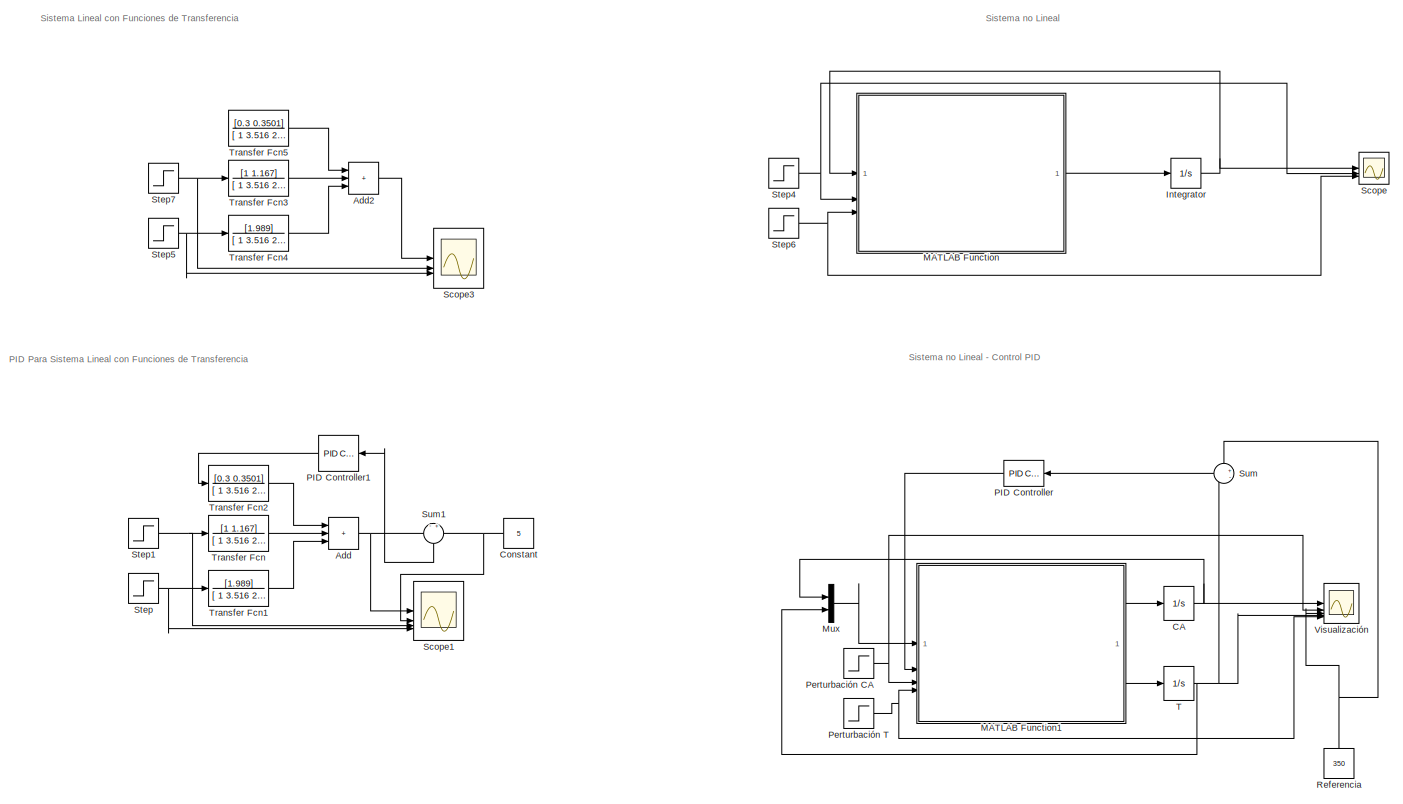
[diagram: root canvas - part 1/2, right side, full height]
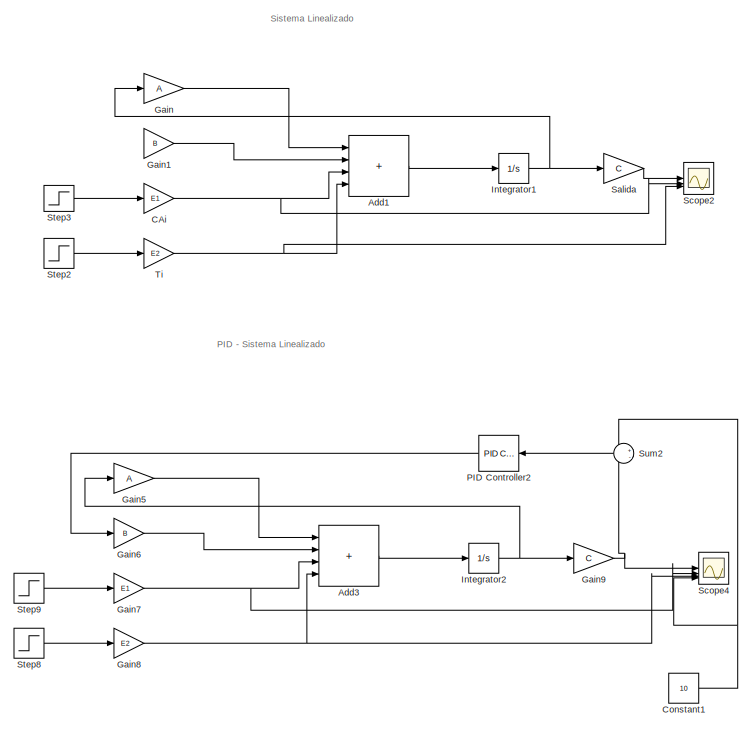
[diagram: root canvas - part 2/2, left side, full height]
MODEL slx_014131b4ae39
KIND model
CONFIG AbsTol = auto
CONFIG EnableMultiTasking = off
CONFIG FixedStep = 1e-5
CONFIG MaxStep = auto
CONFIG MinStep = auto
CONFIG RelTol = auto
CONFIG SampleTimeConstraint = Unconstrained
CONFIG SolverName = VariableStepAuto
CONFIG StartTime = 0.0
CONFIG StopTime = 300
BLOCK [Sum] Add
  Commented = on
  IconShape = rectangular
  Inputs = +++
BLOCK [Sum] Add1
  Commented = on
  IconShape = rectangular
  Inputs = ++++
BLOCK [Sum] Add2
  Commented = on
  IconShape = rectangular
  Inputs = +++
BLOCK [Sum] Add3
  Commented = on
  IconShape = rectangular
  Inputs = ++++
BLOCK [Integrator] CA
  InitialCondition = 8
BLOCK [Gain] CAi
  Commented = on
  Gain = E1
BLOCK [Constant] Constant
  Commented = on
  NameLocation = top
  Value = 5
BLOCK [Constant] Constant1
  Commented = on
  Value = 10
BLOCK [Gain] Gain
  Commented = on
  Gain = A
  Multiplication = Matrix(K*u)
BLOCK [Gain] Gain1
  Commented = on
  Gain = B
BLOCK [Gain] Gain5
  Commented = on
  Gain = A
  Multiplication = Matrix(K*u)
BLOCK [Gain] Gain6
  Commented = on
  Gain = B
BLOCK [Gain] Gain7
  Commented = on
  Gain = E1
BLOCK [Gain] Gain8
  Commented = on
  Gain = E2
BLOCK [Gain] Gain9
  Commented = on
  Gain = C
  Multiplication = Matrix(K*u)
BLOCK [Integrator] Integrator
  Commented = on
  InitialCondition = [8;300]
BLOCK [Integrator] Integrator1
  Commented = on
BLOCK [Integrator] Integrator2
  Commented = on
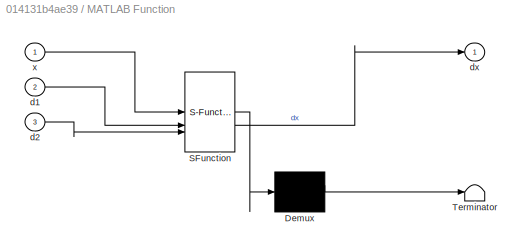
BLOCK [SubSystem] MATLAB Function
  Commented = on
  ErrorFcn = Stateflow.Translate.translate
  PermitHierarchicalResolution = ExplicitOnly
  SFBlockType = MATLAB Function
  TreatAsAtomicUnit = on
BLOCK [Demux] MATLAB Function/ Demux 
  Outputs = 1
BLOCK [S-Function] MATLAB Function/ SFunction 
  EnableBusSupport = on
  FunctionName = sf_sfun
  Parameters = A,CAi_ss,E,F,H,R,Tc_ss,Ti_ss,UA,V,pCp
  PortCounts = [3 2]
  SFcnIsStateOwnerBlock = off
  SFunctionDeploymentMode = off
  Tag = Stateflow S-Function 2
BLOCK [Terminator] MATLAB Function/ Terminator 
BLOCK [Inport] MATLAB Function/d1
  Port = 2
BLOCK [Inport] MATLAB Function/d2
  Port = 3
BLOCK [Outport] MATLAB Function/dx
BLOCK [Inport] MATLAB Function/x
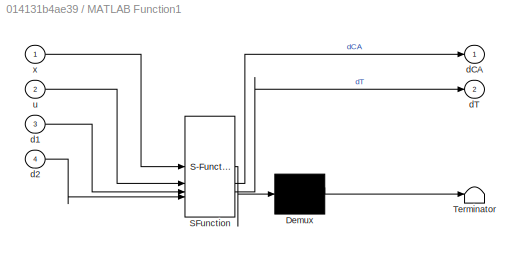
BLOCK [SubSystem] MATLAB Function1
  ErrorFcn = Stateflow.Translate.translate
  PermitHierarchicalResolution = ExplicitOnly
  SFBlockType = MATLAB Function
  TreatAsAtomicUnit = on
BLOCK [Demux] MATLAB Function1/ Demux 
  Outputs = 1
BLOCK [S-Function] MATLAB Function1/ SFunction 
  EnableBusSupport = on
  FunctionName = sf_sfun
  Parameters = A,CAi_ss,E,F,H,R,Ti_ss,UA,V,pCp
  PortCounts = [4 3]
  SFcnIsStateOwnerBlock = off
  SFunctionDeploymentMode = off
  Tag = Stateflow S-Function 1
BLOCK [Terminator] MATLAB Function1/ Terminator 
BLOCK [Inport] MATLAB Function1/d1
  Port = 3
BLOCK [Inport] MATLAB Function1/d2
  Port = 4
BLOCK [Outport] MATLAB Function1/dCA
BLOCK [Outport] MATLAB Function1/dT
  Port = 2
BLOCK [Inport] MATLAB Function1/u
  Port = 2
BLOCK [Inport] MATLAB Function1/x
BLOCK [Mux] Mux
  DisplayOption = bar
  Inputs = 2
BLOCK [Reference] PID Controller  REF=slpidlib/PID Controller
  LibrarySourceBlock = simulink/Continuous/PID Controller
  NameLocation = top
  SourceBlock = slpidlib/PID Controller
  SourceType = PID 1dof
BLOCK [Reference] PID Controller1  REF=slpidlib/PID Controller
  Commented = on
  LibrarySourceBlock = simulink/Continuous/PID Controller
  NameLocation = top
  SourceBlock = slpidlib/PID Controller
  SourceType = PID 1dof
BLOCK [Reference] PID Controller2  REF=slpidlib/PID Controller
  Commented = on
  LibrarySourceBlock = simulink/Continuous/PID Controller
  NameLocation = top
  SourceBlock = slpidlib/PID Controller
  SourceType = PID 1dof
BLOCK [Step] Perturbación CA
  After = 0
  SampleTime = 0
  Time = 0
BLOCK [Step] Perturbación T
  After = 10
  SampleTime = 0
  Time = 100
BLOCK [Constant] Referencia
  NameLocation = right
  Value = 350
BLOCK [Gain] Salida
  Commented = on
  Gain = C
  Multiplication = Matrix(K*u)
BLOCK [Scope] Scope
  Commented = on
  Floating = off
  NumInputPorts = 3
  ScopeSpecificationString = Simulink.scopes.TimeScopeBlockCfg('CurrentConfiguration', extmgr.ConfigurationSet(extmgr.Configuration('Core','General UI',true),extmgr.Configuration('Core','Source UI',true),extmgr.Configuration('Sources','WiredSimulink',true),extmgr.Configuration('Visuals','Time Domain',true,'SerializedDisplays',{struct('MinYLimReal','-38.91247','MaxYLimReal','350.21225','YLabelReal','','MinYLimMag','0.00000','M...<+1579ch>
BLOCK [Scope] Scope1
  Commented = on
  Floating = off
  NameLocation = right
  NumInputPorts = 4
  ScopeSpecificationString = Simulink.scopes.TimeScopeBlockCfg('CurrentConfiguration', extmgr.ConfigurationSet(extmgr.Configuration('Core','General UI',true),extmgr.Configuration('Core','Source UI',true),extmgr.Configuration('Sources','WiredSimulink',true,'DataLoggingVariableName','ScopeData1'),extmgr.Configuration('Visuals','Time Domain',true,'SerializedDisplays',{struct('MinYLimReal','-0.68023','MaxYLimReal','6.12205','YLab...<+1503ch>
BLOCK [Scope] Scope2
  Commented = on
  Floating = off
  NumInputPorts = 3
  ScopeSpecificationString = Simulink.scopes.TimeScopeBlockCfg('CurrentConfiguration', extmgr.ConfigurationSet(extmgr.Configuration('Core','General UI',true),extmgr.Configuration('Core','Source UI',true),extmgr.Configuration('Sources','WiredSimulink',true,'DataLoggingVariableName','ScopeData2'),extmgr.Configuration('Visuals','Time Domain',true,'SerializedDisplays',{struct('MinYLimReal','-0.6771','MaxYLimReal','6.09392','YLabe...<+1657ch>
BLOCK [Scope] Scope3
  Commented = on
  Floating = off
  NameLocation = right
  NumInputPorts = 3
  ScopeSpecificationString = Simulink.scopes.TimeScopeBlockCfg('CurrentConfiguration', extmgr.ConfigurationSet(extmgr.Configuration('Core','General UI',true),extmgr.Configuration('Core','Source UI',true),extmgr.Configuration('Sources','WiredSimulink',true,'DataLoggingVariableName','ScopeData4'),extmgr.Configuration('Visuals','Time Domain',true,'SerializedDisplays',{struct('MinYLimReal','-0.375','MaxYLimReal','3.375','YLabelRe...<+1482ch>
BLOCK [Scope] Scope4
  Commented = on
  Floating = off
  NumInputPorts = 4
  ScopeSpecificationString = Simulink.scopes.TimeScopeBlockCfg('CurrentConfiguration', extmgr.ConfigurationSet(extmgr.Configuration('Core','General UI',true),extmgr.Configuration('Core','Source UI',true),extmgr.Configuration('Sources','WiredSimulink',true,'DataLoggingVariableName','ScopeData5'),extmgr.Configuration('Visuals','Time Domain',true,'SerializedDisplays',{struct('MinYLimReal','-1.41498','MaxYLimReal','12.73483','YLa...<+1535ch>
BLOCK [Step] Step
  Commented = on
  SampleTime = 0
  Time = 150
BLOCK [Step] Step1
  After = 0
  Commented = on
  SampleTime = 0
  Time = 0
BLOCK [Step] Step2
  After = 5
  Commented = on
  SampleTime = 0
  Time = 50
BLOCK [Step] Step3
  After = 5
  Commented = on
  SampleTime = 0
  Time = 200
BLOCK [Step] Step4
  After = 0
  Commented = on
  SampleTime = 0
  Time = 0
BLOCK [Step] Step5
  After = 3
  Commented = on
  SampleTime = 0
  Time = 100
BLOCK [Step] Step6
  After = 0
  Commented = on
  SampleTime = 0
  Time = 0
BLOCK [Step] Step7
  After = 0
  Commented = on
  SampleTime = 0
  Time = 0
BLOCK [Step] Step8
  After = 4
  Commented = on
  SampleTime = 0
  Time = 250
BLOCK [Step] Step9
  After = 0
  Commented = on
  SampleTime = 0
  Time = 0
BLOCK [Sum] Sum
  Inputs = +-
  NameLocation = top
BLOCK [Sum] Sum1
  Commented = on
  Inputs = -+
  NameLocation = left
BLOCK [Sum] Sum2
  Commented = on
  Inputs = +-
  NameLocation = top
BLOCK [Integrator] T
  InitialCondition = [8;300]
BLOCK [Gain] Ti
  Commented = on
  Gain = E2
BLOCK [TransferFcn] Transfer Fcn
  Commented = on
  Denominator = [ 1  3.516  2.916 ]
  Numerator = [1 1.167]
BLOCK [TransferFcn] Transfer Fcn1
  Commented = on
  Denominator = [ 1  3.516  2.916 ]
  Numerator = [1.989]
BLOCK [TransferFcn] Transfer Fcn2
  Commented = on
  Denominator = [ 1  3.516  2.916 ]
  Numerator = [0.3 0.3501]
BLOCK [TransferFcn] Transfer Fcn3
  Commented = on
  Denominator = [ 1  3.516  2.916 ]
  Numerator = [1 1.167]
BLOCK [TransferFcn] Transfer Fcn4
  Commented = on
  Denominator = [ 1  3.516  2.916 ]
  Numerator = [1.989]
BLOCK [TransferFcn] Transfer Fcn5
  Commented = on
  Denominator = [ 1  3.516  2.916 ]
  Numerator = [0.3 0.3501]
BLOCK [Scope] Visualización
  Floating = off
  NumInputPorts = 5
  ScopeSpecificationString = Simulink.scopes.TimeScopeBlockCfg('CurrentConfiguration', extmgr.ConfigurationSet(extmgr.Configuration('Core','General UI',true),extmgr.Configuration('Core','Source UI',true),extmgr.Configuration('Sources','WiredSimulink',true,'DataLoggingVariableName','ScopeData3'),extmgr.Configuration('Visuals','Time Domain',true,'SerializedDisplays',{struct('MinYLimReal','-50.11198','MaxYLimReal','451.00783','Y...<+1798ch>
ANNOTATION (root): PID - Sistema Linealizado
ANNOTATION (root): PID Para Sistema Lineal con Funciones de Transferencia
ANNOTATION (root): Sistema Linealizado
ANNOTATION (root): Sistema no Lineal - Control PID
ANNOTATION (root): Sistema no Lineal
ANNOTATION (root): Sistema Lineal con Funciones de Transferencia
LINE Add1:1 -> Integrator1:1
LINE Add2:1 -> Scope3:1
LINE Add3:1 -> Integrator2:1
NET Add:1 -> Scope1:1, Sum1:1
NET CA:1 -> Mux:1, Visualización:1
NET CAi:1 -> Add1:3, Scope2:2
NET Constant1:1 -> Scope4:4, Sum2:1
NET Constant:1 -> Scope1:2, Sum1:2
LINE Gain1:1 -> Add1:2
LINE Gain5:1 -> Add3:1
LINE Gain6:1 -> Add3:2
NET Gain7:1 -> Add3:3, Scope4:2
NET Gain8:1 -> Add3:4, Scope4:3
NET Gain9:1 -> Scope4:1, Sum2:2
LINE Gain:1 -> Add1:1
NET Integrator1:1 -> Gain:1, Salida:1
NET Integrator2:1 -> Gain5:1, Gain9:1
NET Integrator:1 -> MATLAB Function:1, Scope:1
LINE MATLAB Function1:1 -> CA:1
LINE MATLAB Function1:2 -> T:1
LINE MATLAB Function:1 -> Integrator:1
LINE Mux:1 -> MATLAB Function1:1
LINE PID Controller1:1 -> Transfer Fcn2:1
LINE PID Controller2:1 -> Gain6:1
LINE PID Controller:1 -> MATLAB Function1:2
NET Perturbación CA:1 -> MATLAB Function1:3, Visualización:2
NET Perturbación T:1 -> MATLAB Function1:4, Visualización:5
NET Referencia:1 -> Sum:1, Visualización:3
LINE Salida:1 -> Scope2:1
NET Step1:1 -> Scope1:3, Transfer Fcn:1
LINE Step2:1 -> Ti:1
LINE Step3:1 -> CAi:1
NET Step4:1 -> MATLAB Function:2, Scope:2
NET Step5:1 -> Scope3:3, Transfer Fcn4:1
NET Step6:1 -> MATLAB Function:3, Scope:3
NET Step7:1 -> Scope3:2, Transfer Fcn3:1
LINE Step8:1 -> Gain8:1
LINE Step9:1 -> Gain7:1
NET Step:1 -> Scope1:4, Transfer Fcn1:1
LINE Sum1:1 -> PID Controller1:1
LINE Sum2:1 -> PID Controller2:1
LINE Sum:1 -> PID Controller:1
NET T:1 -> Mux:2, Sum:2, Visualización:4
NET Ti:1 -> Add1:4, Scope2:3
LINE Transfer Fcn1:1 -> Add:3
LINE Transfer Fcn2:1 -> Add:1
LINE Transfer Fcn3:1 -> Add2:2
LINE Transfer Fcn4:1 -> Add2:3
LINE Transfer Fcn5:1 -> Add2:1
LINE Transfer Fcn:1 -> Add:2
note: NET lines group one-source signal fan-out (src -> all destinations, sorted); 1:1 wires keep LINE
CHART MATLAB Function1 states=1 transitions=1
  STATE_LABEL 'eML_blk_kernel()'
  STATE_LABEL 'SCRIPT:\nfunction [dCA,dT]=fcn(x,u,F,V, R, E, A, H, pCp, CAi_ss, Ti_ss, UA,d1,d2)\n\nk = A .* exp(-E ./ (R .* x(2)));\ndCA = (F/V) * (CAi_ss+d1 - x(1)) - (k .* x(1));\ndT = (F/V)*(Ti_ss+d2 - x(2)) + (-H/pCp).*k.* x(1) + (UA/(V*pCp))*(u - x(2));\n\n\nend'
CHART MATLAB Function states=1 transitions=1
  STATE_LABEL 'eML_blk_kernel()'
  STATE_LABEL 'SCRIPT:\nfunction dx = fcn(x, F, V, R, E, A, H, pCp, CAi_ss, Ti_ss, Tc_ss, UA,d1,d2)\n\nk = A .* exp(-E ./ (R .* x(2)));\ndx1 = (F/V) * (CAi_ss+d1 - x(1)) - (k .* x(1));\ndx2 = (F/V)*(Ti_ss+d2 - x(2)) + (-H/pCp).*k.* x(1) + (UA/(V*pCp))*(Tc_ss - x(2));\n\ndx=[dx1;dx2];\n\n\nend'
CHART  states=0 transitions=0
CHART  states=0 transitions=0
